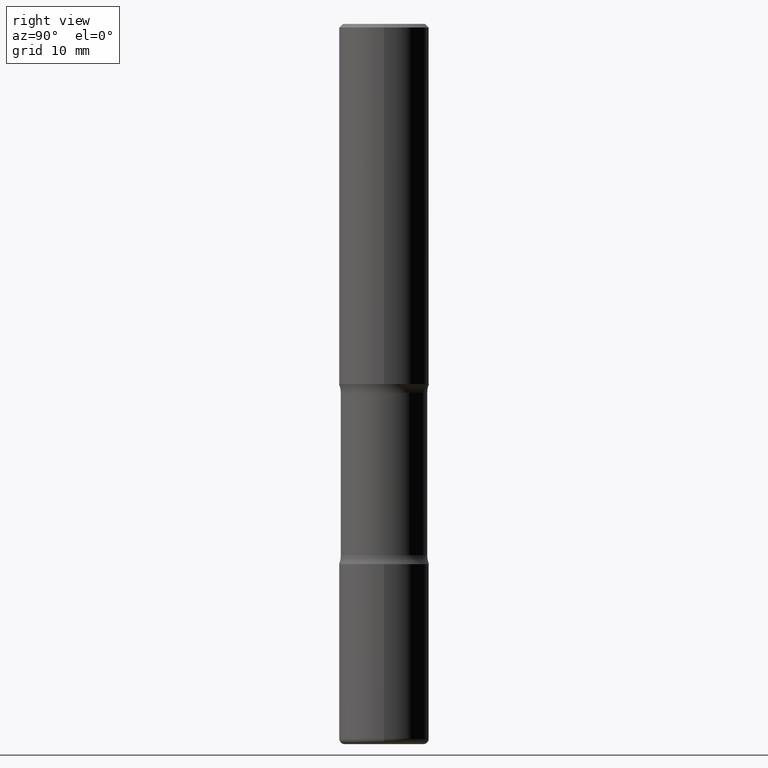
[diagram: clean part render]
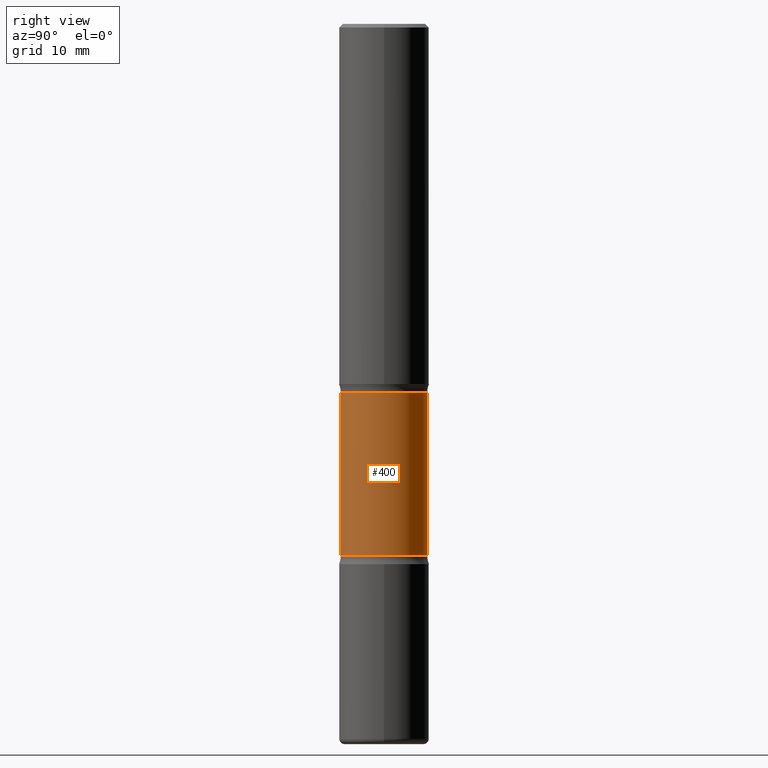
[diagram: same view with one face highlighted and labeled with its STEP entity id]
A machine part, right view. The second image highlights one B-rep face of the part: STEP entity #400.
In plain terms, the highlighted cylindrical surface (partial cylindrical patch) has radius 6.096 mm, axis along (0, -0, -1).
Its self-contained STEP definition (entity closure, byte-faithful):
#22 = VERTEX_POINT ( 'NONE', #197 ) ;
#26 = ORIENTED_EDGE ( 'NONE', *, *, #157, .F. ) ;
#28 = DIRECTION ( 'NONE',  ( 6.982962677686265922E-15, 1.000000000000000000, -4.553079989440444614E-15 ) ) ;
#33 = CARTESIAN_POINT ( 'NONE',  ( -1.646519519465069149E-15, -0.2400000000000138967, -3.999999999999998668 ) ) ;
#38 = EDGE_LOOP ( 'NONE', ( #337, #322, #466, #26 ) ) ;
#44 = CARTESIAN_POINT ( 'NONE',  ( 5.169481762701493351E-29, -6.926683291641790899E-15, -2.048989794855664126 ) ) ;
#49 = VECTOR ( 'NONE', #91, 39.37007874015748143 ) ;
#57 = CARTESIAN_POINT ( 'NONE',  ( 1.675911042644774969E-15, 0.2399999999999895550, -2.951010205144337206 ) ) ;
#86 = EDGE_CURVE ( 'NONE', #412, #22, #249, .T. ) ;
#91 = DIRECTION ( 'NONE',  ( 2.278550371102527067E-29, -3.730518038288768294E-15, -1.000000000000000000 ) ) ;
#93 = DIRECTION ( 'NONE',  ( 2.278550371102527067E-29, -3.730518038288768294E-15, -1.000000000000000000 ) ) ;
#114 = DIRECTION ( 'NONE',  ( 2.278550371102527067E-29, -3.730518038288768294E-15, -1.000000000000000000 ) ) ;
#138 = CARTESIAN_POINT ( 'NONE',  ( 1.675911042644797846E-15, 0.2399999999999854750, -4.000000000000000888 ) ) ;
#140 = VERTEX_POINT ( 'NONE', #488 ) ;
#145 = AXIS2_PLACEMENT_3D ( 'NONE', #44, #224, #180 ) ;
#157 = EDGE_CURVE ( 'NONE', #344, #412, #359, .T. ) ;
#173 = EDGE_CURVE ( 'NONE', #344, #140, #228, .T. ) ;
#180 = DIRECTION ( 'NONE',  ( 6.982962677686265922E-15, 1.000000000000000000, -3.414809992080334644E-15 ) ) ;
#197 = CARTESIAN_POINT ( 'NONE',  ( -1.680822009453952452E-15, -0.2400000000000101497, -2.951010205144334986 ) ) ;
#222 = DIRECTION ( 'NONE',  ( 2.278550371102527067E-29, -3.730518038288768294E-15, -1.000000000000000000 ) ) ;
#224 = DIRECTION ( 'NONE',  ( 2.278550371102527067E-29, -3.730518038288768294E-15, -1.000000000000000000 ) ) ;
#228 = CIRCLE ( 'NONE', #145, 0.2399999999999996025 ) ;
#231 = FACE_OUTER_BOUND ( 'NONE', #38, .T. ) ;
#249 = CIRCLE ( 'NONE', #517, 0.2399999999999998246 ) ;
#275 = VECTOR ( 'NONE', #93, 39.37007874015748143 ) ;
#281 = CARTESIAN_POINT ( 'NONE',  ( 9.614956789657936857E-29, -1.420496205481820465E-14, -4.000000000000000000 ) ) ;
#322 = ORIENTED_EDGE ( 'NONE', *, *, #441, .T. ) ;
#337 = ORIENTED_EDGE ( 'NONE', *, *, #173, .T. ) ;
#344 = VERTEX_POINT ( 'NONE', #541 ) ;
#359 = LINE ( 'NONE', #138, #49 ) ;
#394 = CARTESIAN_POINT ( 'NONE',  ( 7.224780703306799164E-29, -1.029168670312831509E-14, -2.951010205144335874 ) ) ;
#400 = ADVANCED_FACE ( 'NONE', ( #231 ), #495, .T. ) ;
#412 = VERTEX_POINT ( 'NONE', #57 ) ;
#441 = EDGE_CURVE ( 'NONE', #140, #22, #462, .T. ) ;
#442 = AXIS2_PLACEMENT_3D ( 'NONE', #281, #114, #28 ) ;
#462 = LINE ( 'NONE', #33, #275 ) ;
#466 = ORIENTED_EDGE ( 'NONE', *, *, #86, .F. ) ;
#488 = CARTESIAN_POINT ( 'NONE',  ( -1.680822009453972371E-15, -0.2400000000000065692, -2.048989794855663238 ) ) ;
#495 = CYLINDRICAL_SURFACE ( 'NONE', #442, 0.2399999999999996858 ) ;
#516 = DIRECTION ( 'NONE',  ( 6.982962677686265922E-15, 1.000000000000000000, -4.553079989440442247E-15 ) ) ;
#517 = AXIS2_PLACEMENT_3D ( 'NONE', #394, #222, #516 ) ;
#541 = CARTESIAN_POINT ( 'NONE',  ( 1.675911042644752683E-15, 0.2399999999999926636, -2.048989794855665014 ) ) ;